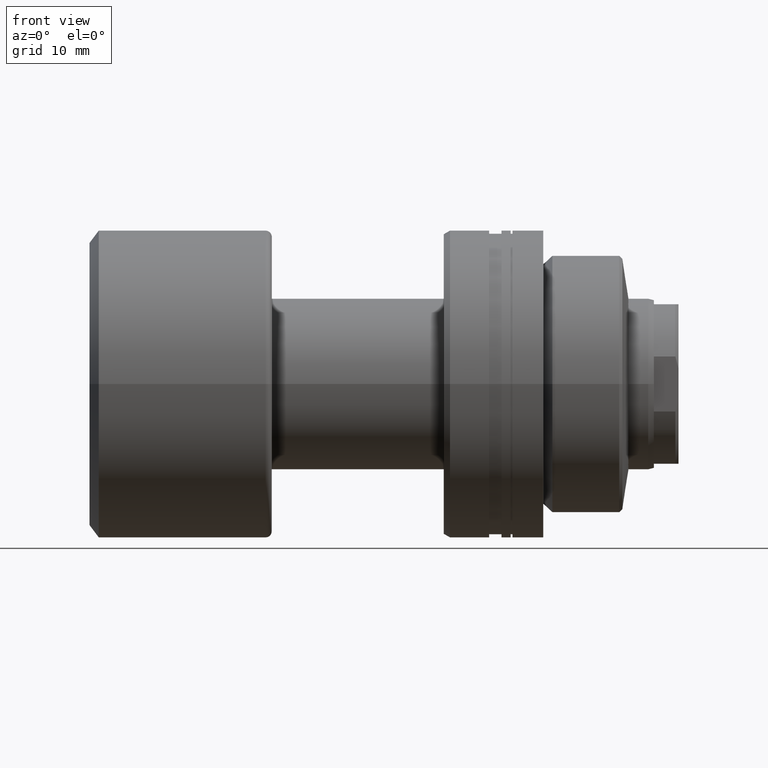
[diagram: clean part render]
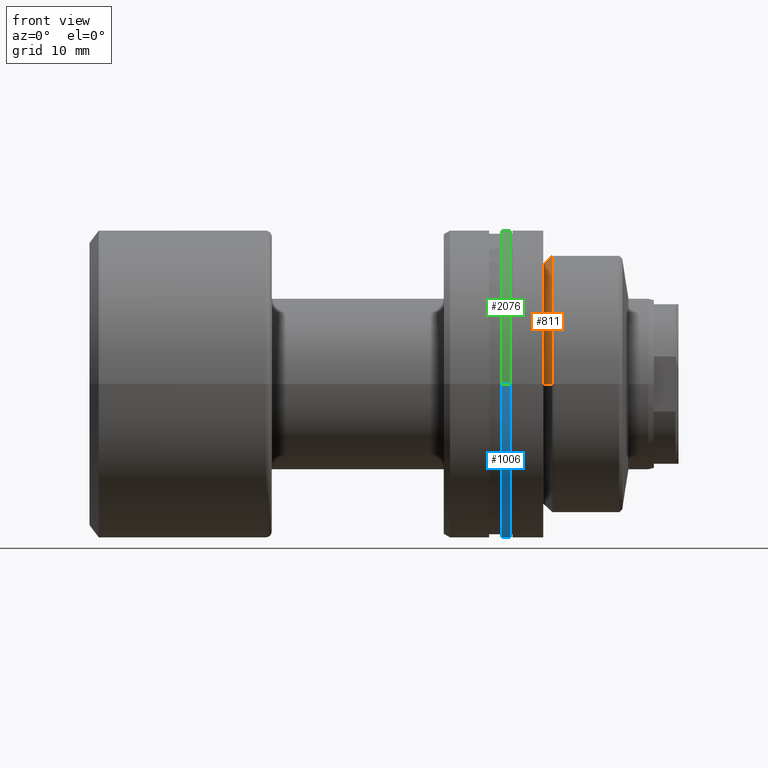
[diagram: same view with three faces highlighted in distinct colors, each labeled with its STEP entity id]
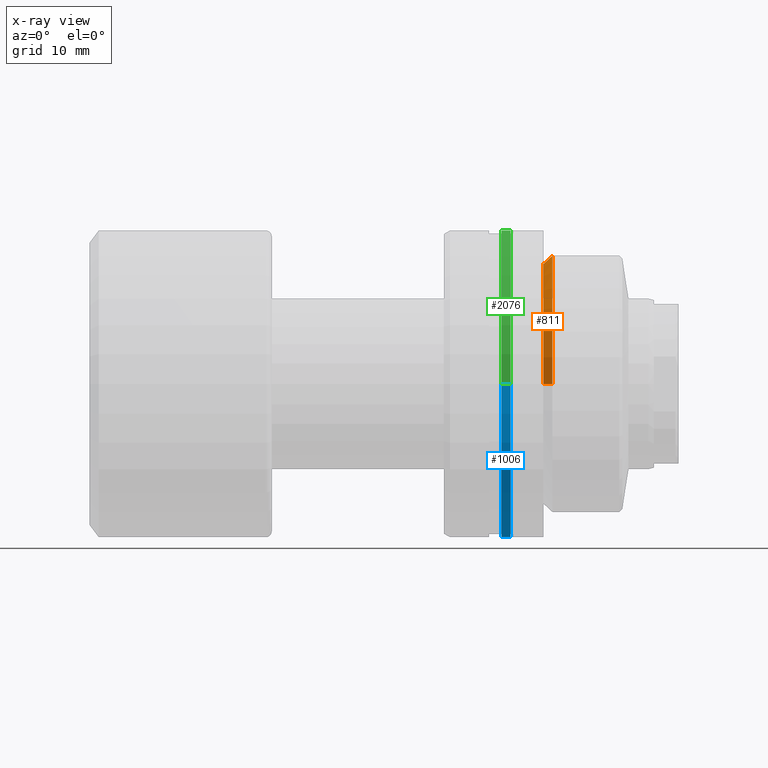
[diagram: x-ray of the same camera — body ghosted, the three highlighted faces saturated]
A machine part, front view with three faces highlighted in distinct colors.
The next image is the same camera in x-ray (body ghosted, the three faces saturated) — at least one of them is partly hidden behind the body in this view.
Their STEP definitions:

[orange] entity #811 — the highlighted conical surface has half-angle 45 deg.
#77 = DIRECTION ( 'NONE',  ( 1.000000000000000000, 1.931394410353556421E-15, -0.000000000000000000 ) ) ;
#162 = CARTESIAN_POINT ( 'NONE',  ( -16.00000000000007816, 19.50000000000074962, 0.000000000000000000 ) ) ;
#353 = EDGE_CURVE ( 'NONE', #429, #1741, #2094, .T. ) ;
#411 = EDGE_CURVE ( 'NONE', #985, #596, #911, .T. ) ;
#429 = VERTEX_POINT ( 'NONE', #1261 ) ;
#556 = DIRECTION ( 'NONE',  ( 0.7071067811865472397, -0.7071067811865479058, 8.659560562354953812E-17 ) ) ;
#593 = CARTESIAN_POINT ( 'NONE',  ( -16.00000000000000000, -19.50000000000069278, 2.479909768273436448E-15 ) ) ;
#596 = VERTEX_POINT ( 'NONE', #2099 ) ;
#605 = CARTESIAN_POINT ( 'NONE',  ( -16.00000000000003908, 2.758035615176488523E-14, 0.000000000000000000 ) ) ;
#608 = VECTOR ( 'NONE', #556, 999.9999999999998863 ) ;
#618 = AXIS2_PLACEMENT_3D ( 'NONE', #1477, #77, #1325 ) ;
#698 = DIRECTION ( 'NONE',  ( 1.000000000000000000, 1.931394410353556421E-15, -0.000000000000000000 ) ) ;
#727 = AXIS2_PLACEMENT_3D ( 'NONE', #605, #747, #1121 ) ;
#739 = CARTESIAN_POINT ( 'NONE',  ( -16.00000000000000000, -19.50000000000069278, 2.388061258337426897E-15 ) ) ;
#747 = DIRECTION ( 'NONE',  ( 1.000000000000000000, 1.931394410353556421E-15, -0.000000000000000000 ) ) ;
#780 = CARTESIAN_POINT ( 'NONE',  ( -14.50000000000077094, 21.00000000000006750, 0.000000000000000000 ) ) ;
#804 = EDGE_LOOP ( 'NONE', ( #2070, #1576, #1634, #1252 ) ) ;
#811 = ADVANCED_FACE ( 'NONE', ( #1782 ), #2006, .T. ) ;
#865 = AXIS2_PLACEMENT_3D ( 'NONE', #2311, #698, #2282 ) ;
#911 = LINE ( 'NONE', #739, #608 ) ;
#985 = VERTEX_POINT ( 'NONE', #593 ) ;
#1121 = DIRECTION ( 'NONE',  ( -1.957123921614787055E-15, 1.000000000000000000, 0.000000000000000000 ) ) ;
#1252 = ORIENTED_EDGE ( 'NONE', *, *, #353, .F. ) ;
#1257 = EDGE_CURVE ( 'NONE', #429, #985, #1385, .T. ) ;
#1261 = CARTESIAN_POINT ( 'NONE',  ( -16.00000000000007816, 19.50000000000074962, 0.000000000000000000 ) ) ;
#1325 = DIRECTION ( 'NONE',  ( -1.899935235593642616E-15, 1.000000000000000000, 0.000000000000000000 ) ) ;
#1385 = CIRCLE ( 'NONE', #727, 19.50000000000072120 ) ;
#1477 = CARTESIAN_POINT ( 'NONE',  ( -14.50000000000073186, 3.047744776729388235E-14, 0.000000000000000000 ) ) ;
#1576 = ORIENTED_EDGE ( 'NONE', *, *, #411, .T. ) ;
#1607 = VECTOR ( 'NONE', #1920, 1000.000000000000000 ) ;
#1634 = ORIENTED_EDGE ( 'NONE', *, *, #1823, .F. ) ;
#1721 = CIRCLE ( 'NONE', #618, 21.00000000000003553 ) ;
#1741 = VERTEX_POINT ( 'NONE', #780 ) ;
#1782 = FACE_OUTER_BOUND ( 'NONE', #804, .T. ) ;
#1823 = EDGE_CURVE ( 'NONE', #1741, #596, #1721, .T. ) ;
#1920 = DIRECTION ( 'NONE',  ( 0.7071067811865445751, 0.7071067811865504593, 0.000000000000000000 ) ) ;
#2006 = CONICAL_SURFACE ( 'NONE', #865, 19.50000000000072120, 0.7853981633974506105 ) ;
#2070 = ORIENTED_EDGE ( 'NONE', *, *, #1257, .T. ) ;
#2094 = LINE ( 'NONE', #162, #1607 ) ;
#2099 = CARTESIAN_POINT ( 'NONE',  ( -14.50000000000069100, -21.00000000000000355, 2.571758278209446000E-15 ) ) ;
#2282 = DIRECTION ( 'NONE',  ( -1.957123921614787055E-15, 1.000000000000000000, 0.000000000000000000 ) ) ;
#2311 = CARTESIAN_POINT ( 'NONE',  ( -16.00000000000003908, 2.758035615176488523E-14, 0.000000000000000000 ) ) ;

[blue] entity #1006 — the highlighted cylindrical surface (partial cylindrical patch) has radius 25 mm, axis along (1, 0, 0).
#48 = EDGE_CURVE ( 'NONE', #1371, #73, #859, .T. ) ;
#63 = DIRECTION ( 'NONE',  ( 1.000000000000000000, 1.931394410353556421E-15, -0.000000000000000000 ) ) ;
#73 = VERTEX_POINT ( 'NONE', #1064 ) ;
#100 = EDGE_CURVE ( 'NONE', #1371, #1919, #880, .T. ) ;
#153 = AXIS2_PLACEMENT_3D ( 'NONE', #1172, #1875, #1703 ) ;
#223 = AXIS2_PLACEMENT_3D ( 'NONE', #1585, #2314, #2133 ) ;
#235 = CYLINDRICAL_SURFACE ( 'NONE', #1230, 25.00000000000002132 ) ;
#252 = DIRECTION ( 'NONE',  ( 1.000000000000000000, 1.931394410353556421E-15, -0.000000000000000000 ) ) ;
#390 = CARTESIAN_POINT ( 'NONE',  ( -30.28002276692732408, 0.000000000000000000, 0.000000000000000000 ) ) ;
#422 = FACE_OUTER_BOUND ( 'NONE', #751, .T. ) ;
#509 = EDGE_CURVE ( 'NONE', #73, #1925, #1291, .T. ) ;
#597 = CARTESIAN_POINT ( 'NONE',  ( -22.80000000000000071, -25.00000000000000355, 3.061616997868385804E-15 ) ) ;
#626 = ORIENTED_EDGE ( 'NONE', *, *, #773, .F. ) ;
#751 = EDGE_LOOP ( 'NONE', ( #1661, #1053, #2157, #626 ) ) ;
#773 = EDGE_CURVE ( 'NONE', #1919, #1925, #2250, .T. ) ;
#859 = CIRCLE ( 'NONE', #223, 25.00000000000001776 ) ;
#861 = CARTESIAN_POINT ( 'NONE',  ( -21.29999999999999361, -25.00000000000000355, 3.061616997868385804E-15 ) ) ;
#880 = LINE ( 'NONE', #2295, #1603 ) ;
#1006 = ADVANCED_FACE ( 'NONE', ( #422 ), #235, .T. ) ;
#1053 = ORIENTED_EDGE ( 'NONE', *, *, #48, .T. ) ;
#1064 = CARTESIAN_POINT ( 'NONE',  ( -22.80000000000009663, 25.00000000000003197, 0.000000000000000000 ) ) ;
#1137 = DIRECTION ( 'NONE',  ( 1.000000000000000000, 1.931394410353556421E-15, -0.000000000000000000 ) ) ;
#1172 = CARTESIAN_POINT ( 'NONE',  ( -21.30000000000003979, 1.734396577689103060E-14, 0.000000000000000000 ) ) ;
#1184 = VECTOR ( 'NONE', #252, 1000.000000000000000 ) ;
#1230 = AXIS2_PLACEMENT_3D ( 'NONE', #390, #63, #2174 ) ;
#1291 = LINE ( 'NONE', #1830, #1184 ) ;
#1371 = VERTEX_POINT ( 'NONE', #597 ) ;
#1585 = CARTESIAN_POINT ( 'NONE',  ( -22.80000000000005045, 1.444687416136068295E-14, 0.000000000000000000 ) ) ;
#1603 = VECTOR ( 'NONE', #1137, 1000.000000000000000 ) ;
#1661 = ORIENTED_EDGE ( 'NONE', *, *, #100, .F. ) ;
#1703 = DIRECTION ( 'NONE',  ( -1.942890293094022368E-15, 1.000000000000000000, 0.000000000000000000 ) ) ;
#1830 = CARTESIAN_POINT ( 'NONE',  ( -30.28002276692737382, 25.00000000000002132, 0.000000000000000000 ) ) ;
#1875 = DIRECTION ( 'NONE',  ( 1.000000000000000000, 1.931394410353556421E-15, -0.000000000000000000 ) ) ;
#1919 = VERTEX_POINT ( 'NONE', #861 ) ;
#1925 = VERTEX_POINT ( 'NONE', #2078 ) ;
#2078 = CARTESIAN_POINT ( 'NONE',  ( -21.30000000000008953, 25.00000000000003908, 0.000000000000000000 ) ) ;
#2133 = DIRECTION ( 'NONE',  ( -1.942890293094022762E-15, 1.000000000000000000, 0.000000000000000000 ) ) ;
#2157 = ORIENTED_EDGE ( 'NONE', *, *, #509, .T. ) ;
#2174 = DIRECTION ( 'NONE',  ( -1.942890293094022368E-15, 1.000000000000000000, 0.000000000000000000 ) ) ;
#2250 = CIRCLE ( 'NONE', #153, 25.00000000000002132 ) ;
#2295 = CARTESIAN_POINT ( 'NONE',  ( -30.28002276692727435, -25.00000000000002132, 3.061616997868385804E-15 ) ) ;
#2314 = DIRECTION ( 'NONE',  ( 1.000000000000000000, 1.931394410353556421E-15, -0.000000000000000000 ) ) ;

[green] entity #2076 — the highlighted cylindrical surface (partial cylindrical patch) has radius 25 mm, axis along (1, 0, 0).
#32 = EDGE_CURVE ( 'NONE', #73, #1371, #1226, .T. ) ;
#73 = VERTEX_POINT ( 'NONE', #1064 ) ;
#100 = EDGE_CURVE ( 'NONE', #1371, #1919, #880, .T. ) ;
#183 = CYLINDRICAL_SURFACE ( 'NONE', #1388, 25.00000000000002132 ) ;
#252 = DIRECTION ( 'NONE',  ( 1.000000000000000000, 1.931394410353556421E-15, -0.000000000000000000 ) ) ;
#493 = CIRCLE ( 'NONE', #1161, 25.00000000000002132 ) ;
#509 = EDGE_CURVE ( 'NONE', #73, #1925, #1291, .T. ) ;
#537 = FACE_OUTER_BOUND ( 'NONE', #2053, .T. ) ;
#576 = DIRECTION ( 'NONE',  ( -1.942890293094022368E-15, 1.000000000000000000, 0.000000000000000000 ) ) ;
#597 = CARTESIAN_POINT ( 'NONE',  ( -22.80000000000000071, -25.00000000000000355, 3.061616997868385804E-15 ) ) ;
#700 = ORIENTED_EDGE ( 'NONE', *, *, #32, .T. ) ;
#736 = ORIENTED_EDGE ( 'NONE', *, *, #100, .T. ) ;
#740 = DIRECTION ( 'NONE',  ( -1.942890293094022762E-15, 1.000000000000000000, 0.000000000000000000 ) ) ;
#742 = ORIENTED_EDGE ( 'NONE', *, *, #509, .F. ) ;
#746 = DIRECTION ( 'NONE',  ( 1.000000000000000000, 1.931394410353556421E-15, -0.000000000000000000 ) ) ;
#778 = DIRECTION ( 'NONE',  ( 1.000000000000000000, 1.931394410353556421E-15, -0.000000000000000000 ) ) ;
#835 = ORIENTED_EDGE ( 'NONE', *, *, #2244, .F. ) ;
#861 = CARTESIAN_POINT ( 'NONE',  ( -21.29999999999999361, -25.00000000000000355, 3.061616997868385804E-15 ) ) ;
#880 = LINE ( 'NONE', #2295, #1603 ) ;
#1064 = CARTESIAN_POINT ( 'NONE',  ( -22.80000000000009663, 25.00000000000003197, 0.000000000000000000 ) ) ;
#1137 = DIRECTION ( 'NONE',  ( 1.000000000000000000, 1.931394410353556421E-15, -0.000000000000000000 ) ) ;
#1161 = AXIS2_PLACEMENT_3D ( 'NONE', #1280, #778, #576 ) ;
#1184 = VECTOR ( 'NONE', #252, 1000.000000000000000 ) ;
#1226 = CIRCLE ( 'NONE', #1376, 25.00000000000001776 ) ;
#1246 = CARTESIAN_POINT ( 'NONE',  ( -30.28002276692732408, 0.000000000000000000, 0.000000000000000000 ) ) ;
#1280 = CARTESIAN_POINT ( 'NONE',  ( -21.30000000000003979, 1.734396577689103060E-14, 0.000000000000000000 ) ) ;
#1291 = LINE ( 'NONE', #1830, #1184 ) ;
#1371 = VERTEX_POINT ( 'NONE', #597 ) ;
#1376 = AXIS2_PLACEMENT_3D ( 'NONE', #2095, #1574, #740 ) ;
#1388 = AXIS2_PLACEMENT_3D ( 'NONE', #1246, #746, #2098 ) ;
#1574 = DIRECTION ( 'NONE',  ( 1.000000000000000000, 1.931394410353556421E-15, -0.000000000000000000 ) ) ;
#1603 = VECTOR ( 'NONE', #1137, 1000.000000000000000 ) ;
#1830 = CARTESIAN_POINT ( 'NONE',  ( -30.28002276692737382, 25.00000000000002132, 0.000000000000000000 ) ) ;
#1919 = VERTEX_POINT ( 'NONE', #861 ) ;
#1925 = VERTEX_POINT ( 'NONE', #2078 ) ;
#2053 = EDGE_LOOP ( 'NONE', ( #700, #736, #835, #742 ) ) ;
#2076 = ADVANCED_FACE ( 'NONE', ( #537 ), #183, .T. ) ;
#2078 = CARTESIAN_POINT ( 'NONE',  ( -21.30000000000008953, 25.00000000000003908, 0.000000000000000000 ) ) ;
#2095 = CARTESIAN_POINT ( 'NONE',  ( -22.80000000000005045, 1.444687416136068295E-14, 0.000000000000000000 ) ) ;
#2098 = DIRECTION ( 'NONE',  ( -1.942890293094022368E-15, 1.000000000000000000, 0.000000000000000000 ) ) ;
#2244 = EDGE_CURVE ( 'NONE', #1925, #1919, #493, .T. ) ;
#2295 = CARTESIAN_POINT ( 'NONE',  ( -30.28002276692727435, -25.00000000000002132, 3.061616997868385804E-15 ) ) ;